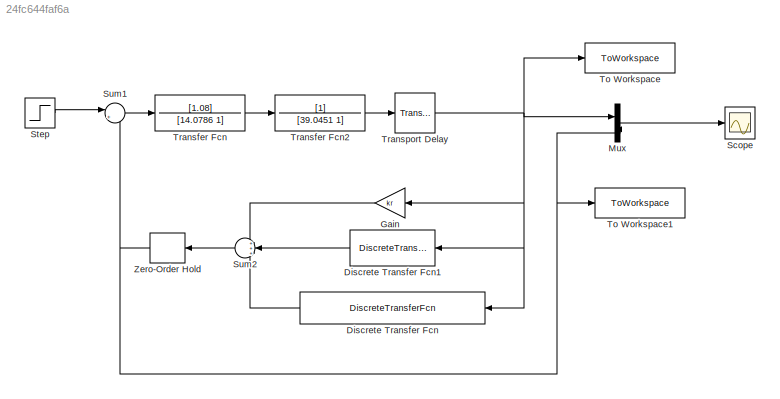
MODEL slx_24fc644faf6a
KIND model
CONFIG AbsTol = auto
CONFIG EnableMultiTasking = off
CONFIG FixedStep = auto
CONFIG MaxStep = auto
CONFIG MinStep = auto
CONFIG RelTol = 1e-3
CONFIG SampleTimeConstraint = Unconstrained
CONFIG SolverName = VariableStepAuto
CONFIG StartTime = 0.0
CONFIG StopTime = 100
BLOCK [DiscreteTransferFcn] Discrete Transfer Fcn
  InputPortMap = u0
  Numerator = [kr*Td/Tp -kr*Td/Tp]
  Ports = [1, 1]
BLOCK [DiscreteTransferFcn] Discrete Transfer Fcn1
  Denominator = [1 -1]
  InputPortMap = u0
  Numerator = [kr*Tp/Ti]
  Ports = [1, 1]
BLOCK [Gain] Gain
  Gain = kr
BLOCK [Mux] Mux
  DisplayOption = bar
  Inputs = 2
  Ports = [2, 1]
BLOCK [Scope] Scope
  Floating = off
  NumInputPorts = 1
  Ports = [1]
  ScopeSpecificationString = Simulink.scopes.TimeScopeBlockCfg('CurrentConfiguration', extmgr.ConfigurationSet(extmgr.Configuration('Core','General UI',true),extmgr.Configuration('Core','Source UI',true),extmgr.Configuration('Sources','WiredSimulink',true),extmgr.Configuration('Visuals','Time Domain',true,'SerializedDisplays',{struct('MinYLimReal','-0.25216','MaxYLimReal','2.26946','YLabelReal','','MinYLimMag','0.00000','MaxY...<+1401ch>
BLOCK [Step] Step
  SampleTime = 0
BLOCK [Sum] Sum1
  Inputs = |+-
  Ports = [2, 1]
BLOCK [Sum] Sum2
  Inputs = +++
  Ports = [3, 1]
BLOCK [ToWorkspace] To Workspace
  FixptAsFi = on
  MaxDataPoints = inf
  Ports = [1]
  SampleTime = -1
  SaveFormat = Timeseries
  VariableName = y
BLOCK [ToWorkspace] To Workspace1
  FixptAsFi = on
  MaxDataPoints = inf
  Ports = [1]
  SampleTime = -1
  SaveFormat = Timeseries
  VariableName = e
BLOCK [TransferFcn] Transfer Fcn
  Denominator = [14.0786 1]
  Numerator = [1.08]
BLOCK [TransferFcn] Transfer Fcn2
  Denominator = [39.0451 1]
BLOCK [TransportDelay] Transport Delay
  DelayTime = 15.1975
  Ports = [1, 1]
BLOCK [ZeroOrderHold] Zero-Order Hold
  SampleTime = Tp
LINE Discrete Transfer Fcn1:1 -> Sum2:2
LINE Discrete Transfer Fcn:1 -> Sum2:3
LINE Gain:1 -> Sum2:1
LINE Mux:1 -> Scope:1
LINE Step:1 -> Sum1:1
LINE Sum1:1 -> Transfer Fcn:1
LINE Sum2:1 -> Zero-Order Hold:1
LINE Transfer Fcn2:1 -> Transport Delay:1
LINE Transfer Fcn:1 -> Transfer Fcn2:1
NET Transport Delay:1 -> Discrete Transfer Fcn1:1, Discrete Transfer Fcn:1, Gain:1, Mux:1, To Workspace:1
NET Zero-Order Hold:1 -> Mux:2, Sum1:2, To Workspace1:1
note: NET lines group one-source signal fan-out (src -> all destinations, sorted); 1:1 wires keep LINE
